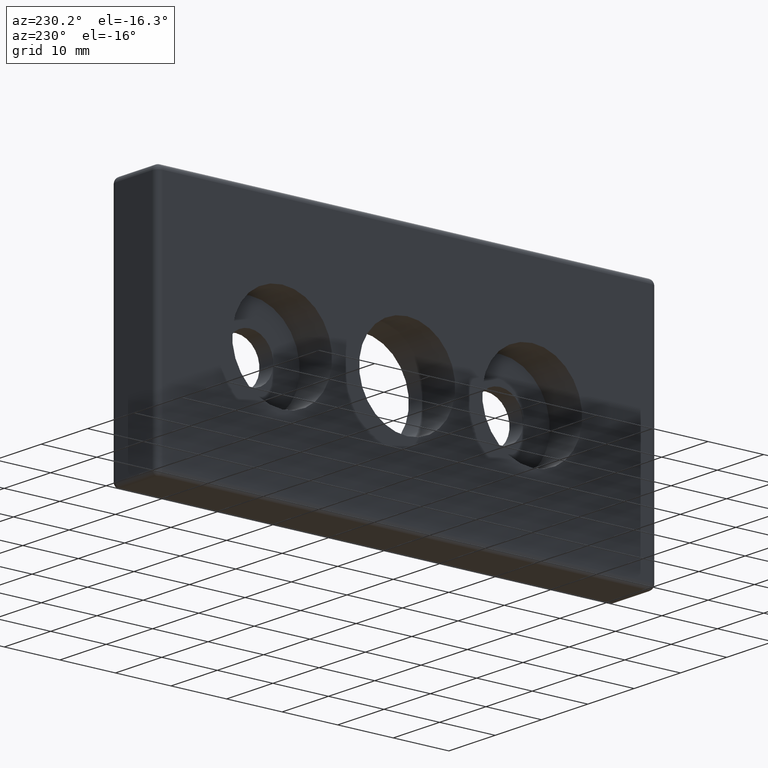
[diagram: clean part render]
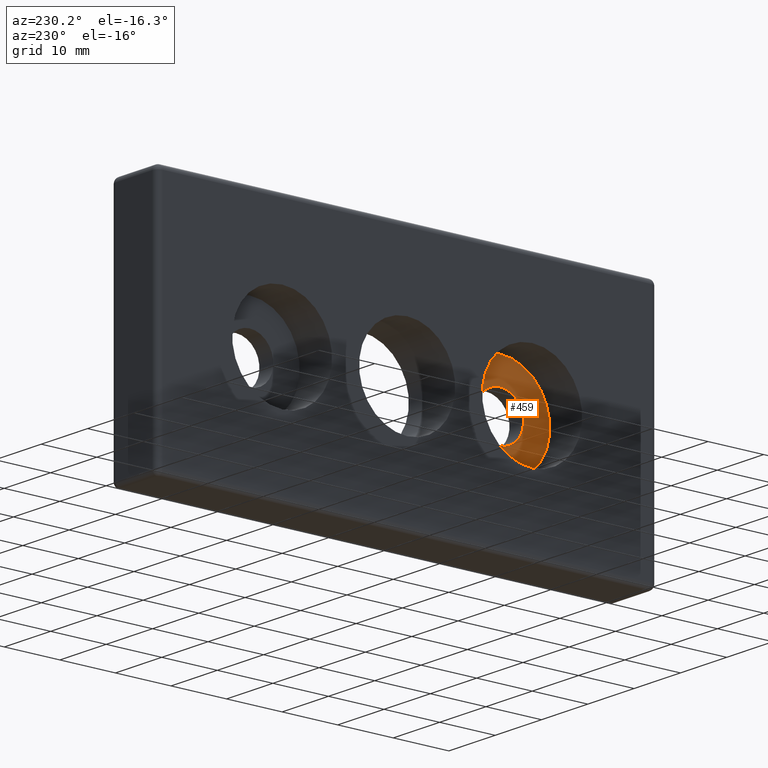
[diagram: same view with one face highlighted and labeled with its STEP entity id]
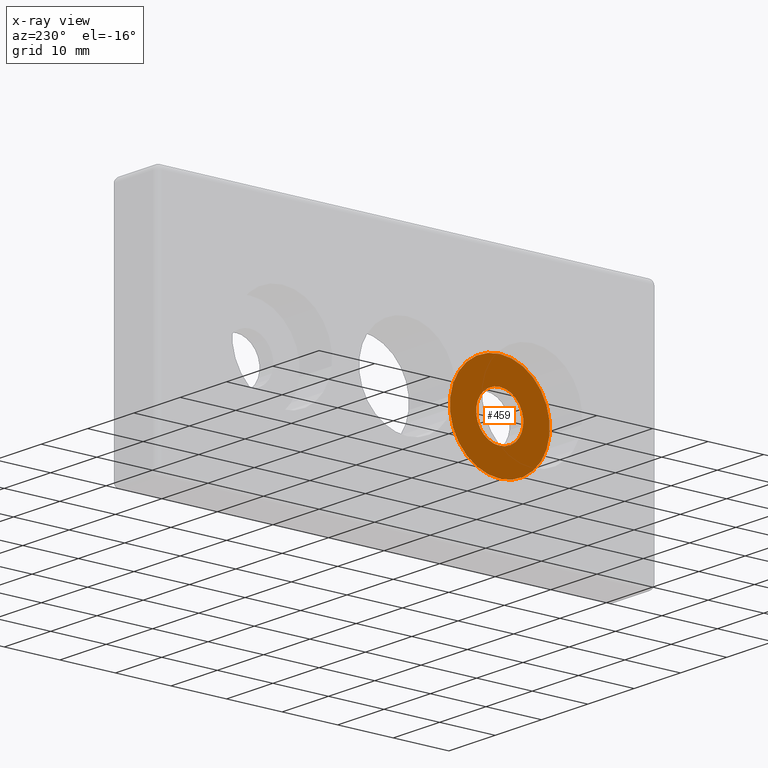
[diagram: x-ray of the same camera — body ghosted, the highlighted face saturated]
A machine part, auxiliary view. The second image highlights one B-rep face of the part: STEP entity #459.
The next image is the same camera in x-ray: the body ghosted, the highlighted face saturated — about 0% of this face is hidden behind the body in this view.
In plain terms, the highlighted planar face has unit normal (-1, 0, 0).
Its self-contained STEP definition (entity closure, byte-faithful):
#24=FACE_BOUND('',#173,.T.);
#35=PLANE('',#526);
#130=FACE_OUTER_BOUND('',#172,.T.);
#172=EDGE_LOOP('',(#414));
#173=EDGE_LOOP('',(#415));
#212=CIRCLE('',#527,9.);
#213=CIRCLE('',#528,4.25);
#246=VERTEX_POINT('',#811);
#247=VERTEX_POINT('',#813);
#304=EDGE_CURVE('',#246,#246,#212,.T.);
#305=EDGE_CURVE('',#247,#247,#213,.T.);
#414=ORIENTED_EDGE('',*,*,#304,.T.);
#415=ORIENTED_EDGE('',*,*,#305,.F.);
#459=ADVANCED_FACE('',(#130,#24),#35,.T.);
#526=AXIS2_PLACEMENT_3D('',#810,#680,#681);
#527=AXIS2_PLACEMENT_3D('',#812,#682,#683);
#528=AXIS2_PLACEMENT_3D('',#814,#684,#685);
#680=DIRECTION('center_axis',(-1.,0.,0.));
#681=DIRECTION('ref_axis',(0.,0.,1.));
#682=DIRECTION('center_axis',(-1.,0.,0.));
#683=DIRECTION('ref_axis',(0.,0.,1.));
#684=DIRECTION('center_axis',(-1.,0.,0.));
#685=DIRECTION('ref_axis',(0.,0.,1.));
#810=CARTESIAN_POINT('Origin',(2.,-22.5,0.));
#811=CARTESIAN_POINT('',(2.,-22.5,9.));
#812=CARTESIAN_POINT('Origin',(2.,-22.5,0.));
#813=CARTESIAN_POINT('',(1.99999999999999,-22.5,-4.25));
#814=CARTESIAN_POINT('Origin',(1.99999999999999,-22.5,0.));